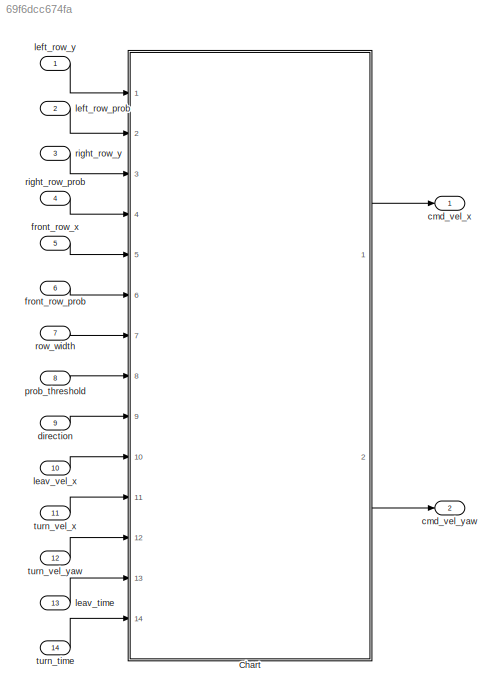
MODEL slx_69f6dcc674fa
KIND model
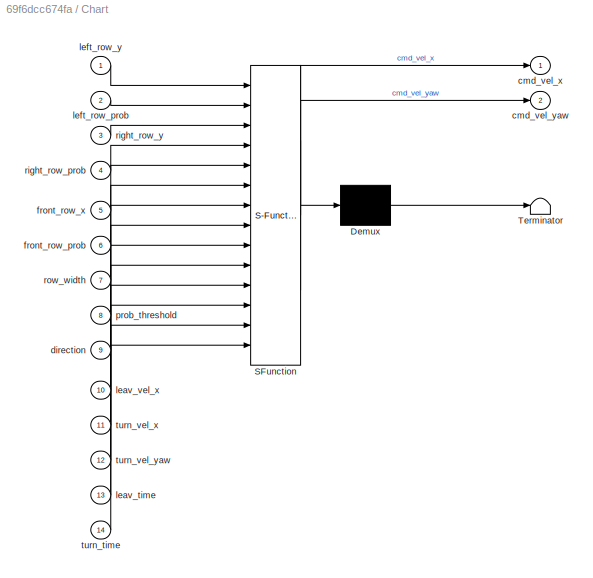
BLOCK [SubSystem] Chart
  ErrorFcn = Stateflow.Translate.translate
  FunctionWithSeparateData = off
  MaskHideContents = off
  MinAlgLoopOccurrences = off
  Opaque = off
  PermitHierarchicalResolution = ExplicitOnly
  Ports = [14, 2]
  PropExecContextOutsideSubsystem = off
  RTWSystemCode = Auto
  RequestExecContextInheritance = off
  SFBlockType = Chart
  TreatAsAtomicUnit = on
BLOCK [Demux] Chart/ Demux 
  Outputs = 1
  Ports = [1, 1]
BLOCK [S-Function] Chart/ SFunction 
  EnableBusSupport = on
  FunctionName = sf_sfun
  PortCounts = [14 3]
  Ports = [14, 3]
  Tag = Stateflow S-Function floribot_task3 1
BLOCK [Terminator] Chart/ Terminator 
BLOCK [Outport] Chart/cmd_vel_x
  IconDisplay = Port number
BLOCK [Outport] Chart/cmd_vel_yaw
  IconDisplay = Port number
  Port = 2
BLOCK [Inport] Chart/direction
  IconDisplay = Port number
  Port = 9
BLOCK [Inport] Chart/front_row_prob
  IconDisplay = Port number
  Port = 6
BLOCK [Inport] Chart/front_row_x
  IconDisplay = Port number
  Port = 5
BLOCK [Inport] Chart/leav_time
  IconDisplay = Port number
  Port = 13
BLOCK [Inport] Chart/leav_vel_x
  IconDisplay = Port number
  Port = 10
BLOCK [Inport] Chart/left_row_prob
  IconDisplay = Port number
  Port = 2
BLOCK [Inport] Chart/left_row_y
  IconDisplay = Port number
BLOCK [Inport] Chart/prob_threshold
  IconDisplay = Port number
  Port = 8
BLOCK [Inport] Chart/right_row_prob
  IconDisplay = Port number
  Port = 4
BLOCK [Inport] Chart/right_row_y
  IconDisplay = Port number
  Port = 3
BLOCK [Inport] Chart/row_width
  IconDisplay = Port number
  Port = 7
BLOCK [Inport] Chart/turn_time
  IconDisplay = Port number
  Port = 14
BLOCK [Inport] Chart/turn_vel_x
  IconDisplay = Port number
  Port = 11
BLOCK [Inport] Chart/turn_vel_yaw
  IconDisplay = Port number
  Port = 12
BLOCK [Outport] cmd_vel_x
  IconDisplay = Port number
BLOCK [Outport] cmd_vel_yaw
  IconDisplay = Port number
  Port = 2
BLOCK [Inport] direction
  IconDisplay = Port number
  Port = 9
BLOCK [Inport] front_row_prob
  IconDisplay = Port number
  Port = 6
BLOCK [Inport] front_row_x
  IconDisplay = Port number
  Port = 5
BLOCK [Inport] leav_time
  IconDisplay = Port number
  Port = 13
BLOCK [Inport] leav_vel_x
  IconDisplay = Port number
  Port = 10
BLOCK [Inport] left_row_prob
  IconDisplay = Port number
  Port = 2
BLOCK [Inport] left_row_y
  IconDisplay = Port number
BLOCK [Inport] prob_threshold
  IconDisplay = Port number
  Port = 8
BLOCK [Inport] right_row_prob
  IconDisplay = Port number
  Port = 4
BLOCK [Inport] right_row_y
  IconDisplay = Port number
  Port = 3
BLOCK [Inport] row_width
  IconDisplay = Port number
  Port = 7
BLOCK [Inport] turn_time
  IconDisplay = Port number
  Port = 14
BLOCK [Inport] turn_vel_x
  IconDisplay = Port number
  Port = 11
BLOCK [Inport] turn_vel_yaw
  IconDisplay = Port number
  Port = 12
LINE Chart:1 -> cmd_vel_x:1
LINE Chart:2 -> cmd_vel_yaw:1
LINE direction:1 -> Chart:9
LINE front_row_prob:1 -> Chart:6
LINE front_row_x:1 -> Chart:5
LINE leav_time:1 -> Chart:13
LINE leav_vel_x:1 -> Chart:10
LINE left_row_prob:1 -> Chart:2
LINE left_row_y:1 -> Chart:1
LINE prob_threshold:1 -> Chart:8
LINE right_row_prob:1 -> Chart:4
LINE right_row_y:1 -> Chart:3
LINE row_width:1 -> Chart:7
LINE turn_time:1 -> Chart:14
LINE turn_vel_x:1 -> Chart:11
LINE turn_vel_yaw:1 -> Chart:12
